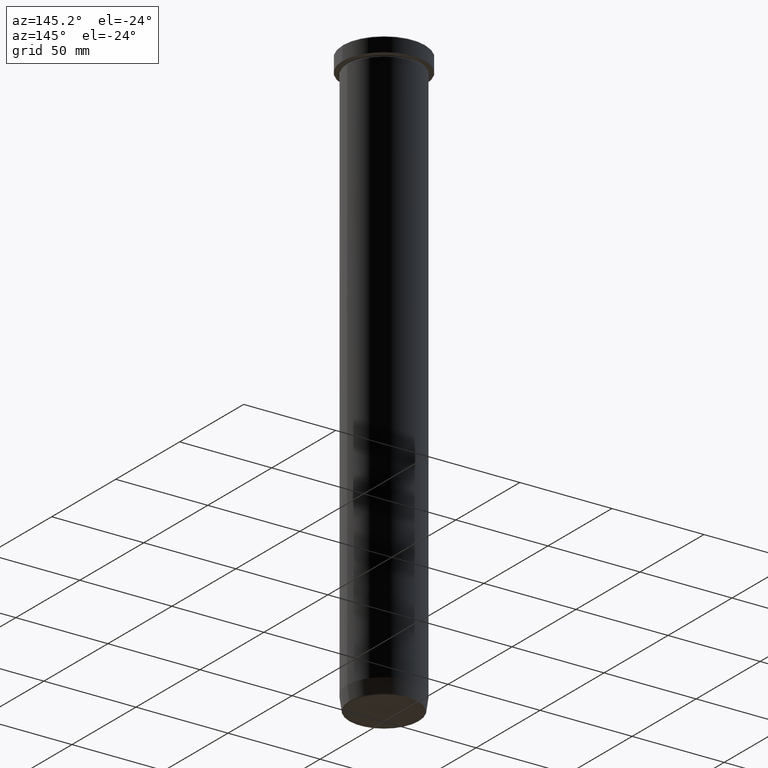
[diagram: clean part render]
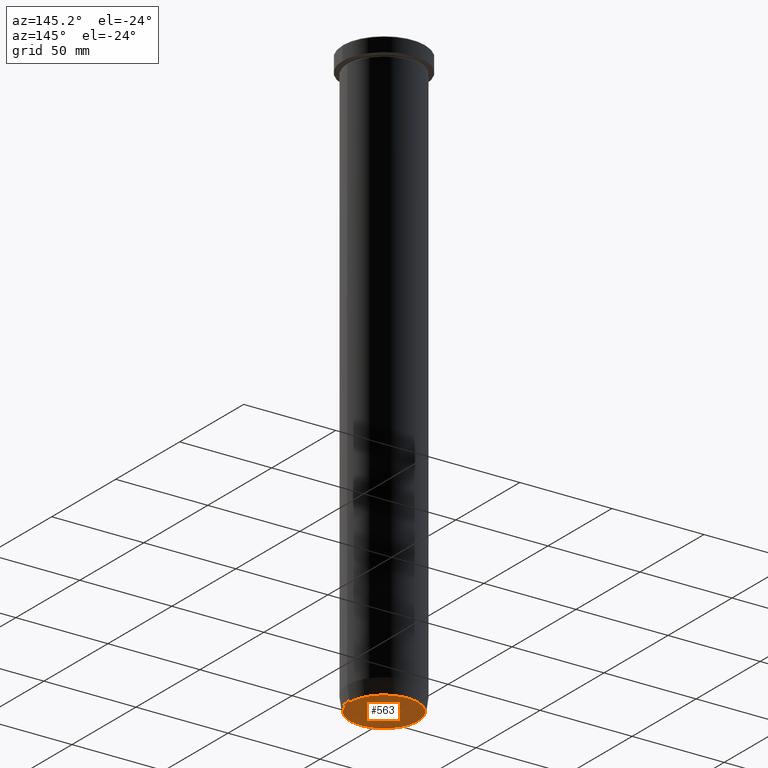
[diagram: same view with one face highlighted and labeled with its STEP entity id]
A machine part, auxiliary view. The second image highlights one B-rep face of the part: STEP entity #563.
In plain terms, the highlighted planar face has unit normal (0, -0, 1).
Its self-contained STEP definition (entity closure, byte-faithful):
#97 = CARTESIAN_POINT ( 'NONE',  ( -18.44102995347274287, 2.288693046067140627E-15, -320.0000000000000000 ) ) ;
#102 = CARTESIAN_POINT ( 'NONE',  ( 18.44102995347274287, 0.000000000000000000, -320.0000000000000000 ) ) ;
#115 = DIRECTION ( 'NONE',  ( 0.000000000000000000, 0.000000000000000000, -1.000000000000000000 ) ) ;
#151 = VERTEX_POINT ( 'NONE', #97 ) ;
#173 = VERTEX_POINT ( 'NONE', #102 ) ;
#212 = AXIS2_PLACEMENT_3D ( 'NONE', #537, #271, #499 ) ;
#271 = DIRECTION ( 'NONE',  ( 0.000000000000000000, -0.000000000000000000, 1.000000000000000000 ) ) ;
#273 = PLANE ( 'NONE',  #212 ) ;
#310 = ORIENTED_EDGE ( 'NONE', *, *, #385, .T. ) ;
#312 = DIRECTION ( 'NONE',  ( 1.000000000000000000, 0.000000000000000000, 0.000000000000000000 ) ) ;
#375 = EDGE_CURVE ( 'NONE', #173, #151, #578, .T. ) ;
#380 = AXIS2_PLACEMENT_3D ( 'NONE', #481, #512, #463 ) ;
#384 = ORIENTED_EDGE ( 'NONE', *, *, #375, .T. ) ;
#385 = EDGE_CURVE ( 'NONE', #151, #173, #556, .T. ) ;
#421 = AXIS2_PLACEMENT_3D ( 'NONE', #533, #115, #312 ) ;
#463 = DIRECTION ( 'NONE',  ( 1.000000000000000000, 0.000000000000000000, 0.000000000000000000 ) ) ;
#477 = EDGE_LOOP ( 'NONE', ( #384, #310 ) ) ;
#481 = CARTESIAN_POINT ( 'NONE',  ( 0.000000000000000000, 0.000000000000000000, -320.0000000000000000 ) ) ;
#495 = FACE_OUTER_BOUND ( 'NONE', #477, .T. ) ;
#499 = DIRECTION ( 'NONE',  ( 1.000000000000000000, 0.000000000000000000, 0.000000000000000000 ) ) ;
#512 = DIRECTION ( 'NONE',  ( 0.000000000000000000, 0.000000000000000000, -1.000000000000000000 ) ) ;
#533 = CARTESIAN_POINT ( 'NONE',  ( 0.000000000000000000, 0.000000000000000000, -320.0000000000000000 ) ) ;
#537 = CARTESIAN_POINT ( 'NONE',  ( 0.000000000000000000, 2.939152317953647342E-14, -320.0000000000000000 ) ) ;
#556 = CIRCLE ( 'NONE', #380, 18.44102995347274287 ) ;
#563 = ADVANCED_FACE ( 'NONE', ( #495 ), #273, .F. ) ;
#578 = CIRCLE ( 'NONE', #421, 18.44102995347274287 ) ;